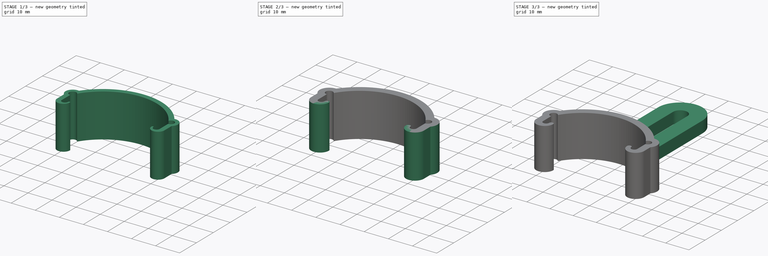
[diagram: build sequence overview — one tinted view per stage of 3, left to right]
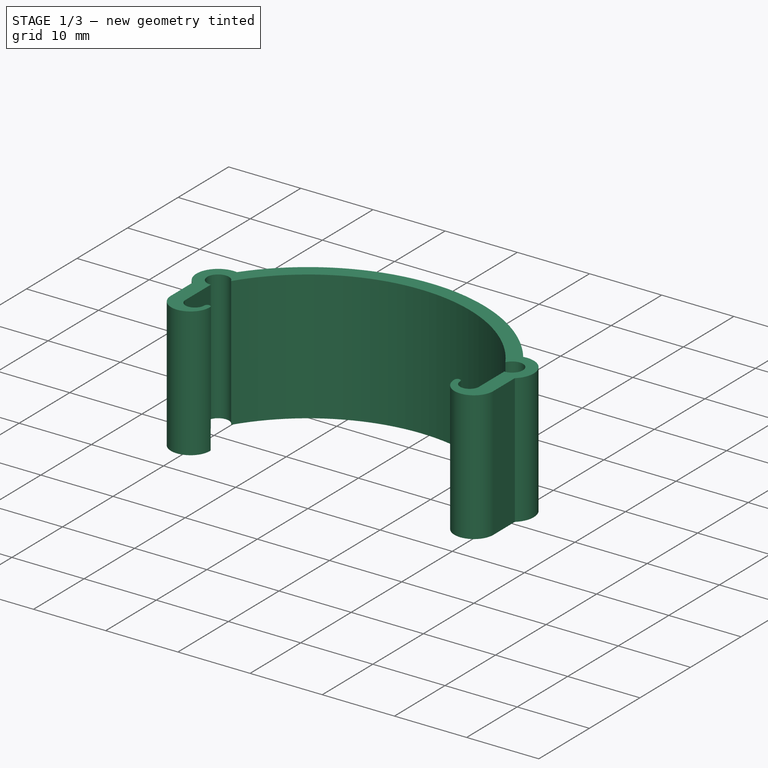
[diagram: stage 1 of 3 — iso view after this stage's code; geometry added in this stage tinted green]
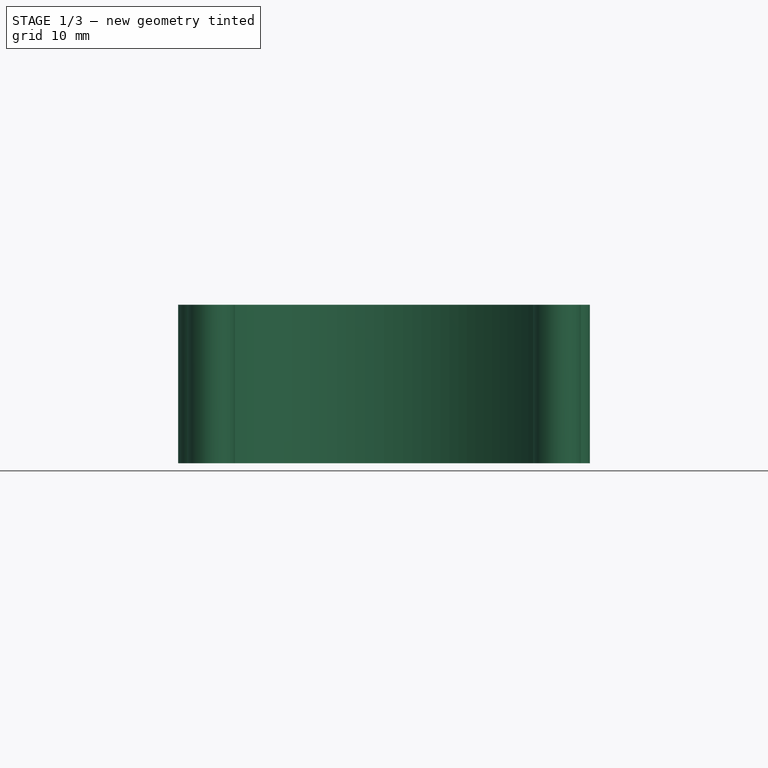
[diagram: stage 1 of 3 — front view after this stage's code; geometry added in this stage tinted green]
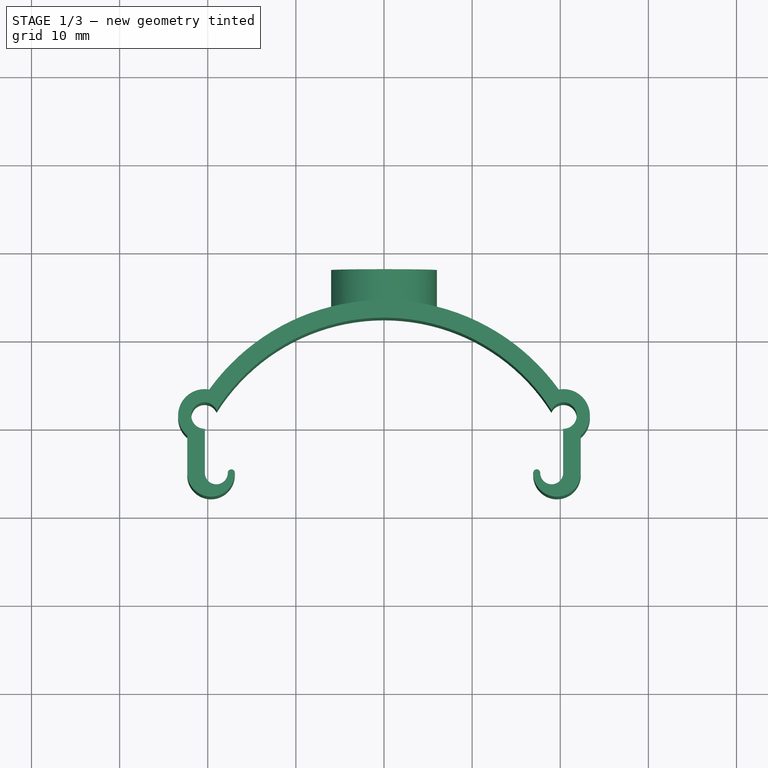
[diagram: stage 1 of 3 — top view after this stage's code; geometry added in this stage tinted green]
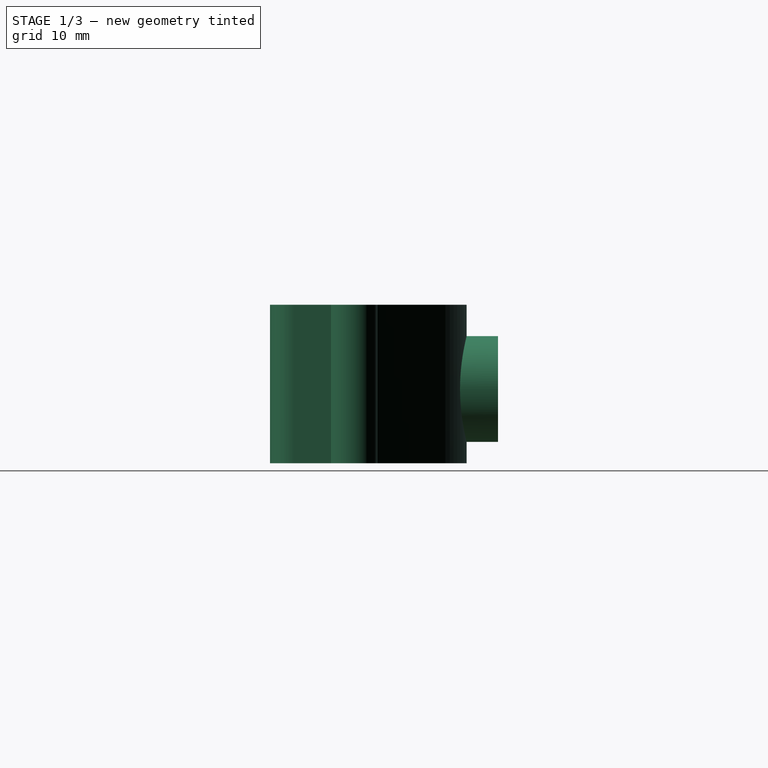
[diagram: stage 1 of 3 — right view after this stage's code; geometry added in this stage tinted green]
FCSTD DOCUMENT  (FreeCAD 1.0R39285 (Git))
Label: clip_garde_boue
License: All rights reserved
LicenseURL: https://en.wikipedia.org/wiki/All_rights_reserved
objects: Sketcher::SketchObject×4, PartDesign::Pad×4, PartDesign::Mirrored×3, PartDesign::Body×2, PartDesign::Fillet×1
note: 31 computed .brp shape members not serialized (recipe doc carries the construction recipe); baked Part::Feature solids carry a one-line shape summary decoded from their .brp

FEATURE [PartDesign::Body] Body  label="top"
  AllowCompound = false
  Group = -> [Sketch,Pad,Mirrored,Sketch001,Pad001,Mirrored001,Fillet]
  Origin = -> Origin
  Tip = -> Fillet
FEATURE [Sketcher::SketchObject] Sketch002
  ArcFitTolerance = 0
  AttachmentSupport = -> [XY_Plane001]
  FullyConstrained = true
  MakeInternals = false
  MapMode = 5
  sketch-geometry (11):
    g0: ArcOfCircle CenterX=0 CenterY=0 CenterZ=0 NormalX=0 NormalY=0 NormalZ=1 AngleXU=0 Radius=22.4405 StartAngle=0.561074 EndAngle=1.5708
    g1: ArcOfCircle CenterX=20.3672 CenterY=11.3233 CenterZ=0 NormalX=0 NormalY=0 NormalZ=1 AngleXU=0 Radius=1.5 StartAngle=4.68778 EndAngle=9.00074
    g2: LineSegment StartX=20.3302 StartY=9.82377 StartZ=0 EndX=20.3302 EndY=4.82377 EndZ=0
    g3: ArcOfCircle CenterX=19.0302 CenterY=4.82377 CenterZ=0 NormalX=0 NormalY=0 NormalZ=1 AngleXU=0 Radius=1.3 StartAngle=3.14159 EndAngle=6.28319
    g4: LineSegment [constr] StartX=20.3302 StartY=9.82377 StartZ=0 EndX=19 EndY=11.9405 EndZ=0
    g5: ArcOfCircle CenterX=0 CenterY=0 CenterZ=0 NormalX=0 NormalY=0 NormalZ=1 AngleXU=0 Radius=24.4405 StartAngle=0.623796 EndAngle=1.5708
    g6: ArcOfCircle CenterX=17.3302 CenterY=4.82377 CenterZ=0 NormalX=0 NormalY=0 NormalZ=1 AngleXU=0 Radius=0.4 StartAngle=-9e-16 EndAngle=3.14159
    g7: ArcOfCircle CenterX=20.3672 CenterY=11.3233 CenterZ=0 NormalX=0 NormalY=0 NormalZ=1 AngleXU=0 Radius=3 StartAngle=5.42573 EndAngle=8.03146
    g8: LineSegment StartX=22.3302 StartY=9.05477 StartZ=0 EndX=22.3302 EndY=4.82377 EndZ=0
    g9: ArcOfCircle CenterX=19.6302 CenterY=4.82377 CenterZ=0 NormalX=0 NormalY=0 NormalZ=1 AngleXU=0 Radius=2.7 StartAngle=3.14159 EndAngle=6.28319
    g10: LineSegment StartX=1.4e-15 StartY=22.4405 StartZ=0 EndX=0 EndY=24.4405 EndZ=0
  constraints (34):
    c: Coincident(g0,g-1)
    c: PointOnObject(g0,g-2)
    c: Coincident(g1,g0)
    c: Coincident(g2,g1)
    c: Vertical(g2)
    c: Coincident(g3,g2)
    c: Diameter(g1) = 3
    c: Diameter(g3) = 2.6
    c: Distance(g2) = 5
    c: Horizontal(g3,g3)
    c: Horizontal(g3,g2)
    c: DistanceY(g0,g0) = 10.5
    c: DistanceX(g0,g0) = 19
    c: Coincident(g4,g1)
    c: Tangent(g4,g0) = -1.5708
    c: Distance(g4) = 2.5
    c: Coincident(g5,g0)
    c: PointOnObject(g5,g-2)
    c: Coincident(g6,g3)
    c: Coincident(g7,g1)
    c: Coincident(g7,g5)
    c: Coincident(g8,g7)
    c: Vertical(g8)
    c: Coincident(g9,g6)
    c: Horizontal(g9,g3)
    c: Horizontal(g3,g6)
    c: Horizontal(g6,g6)
    c: Diameter(g6) = 0.8
    c: DistanceX(g2,g8) = 2
    c: DistanceY(g0,g5) = 2
    c: Diameter(g7) = 6
    c: Tangent(g9,g8) = 1.5708
    c: Coincident(g10,g0)
    c: Coincident(g10,g5)
FEATURE [PartDesign::Pad] Pad002
  Direction = (0,0,1)
  Length = 18
  Length2 = 10
  Profile = -> Sketch002
  ReferenceAxis = -> Sketch002 [N_Axis]
  Suppressed = false
  Type = 0
FEATURE [PartDesign::Mirrored] Mirrored002
  BaseFeature = -> Pad002
  MirrorPlane = -> Sketch002 [V_Axis]
  Originals = -> [Pad002]
  Suppressed = false
  TransformMode = 0
FEATURE [Sketcher::SketchObject] Sketch003
  ArcFitTolerance = 1e-06
  AttachmentSupport = -> [XZ_Plane001]
  ExternalGeometry = -> [Mirrored002]
  FullyConstrained = false
  MakeInternals = false
  MapMode = 5
  Placement = pos=(0,0,0) rot=(1,0,0;1.5708rad)
  sketch-geometry (2):
    g0: Circle CenterX=0 CenterY=8.43639 CenterZ=0 NormalX=0 NormalY=0 NormalZ=1 AngleXU=0 Radius=6
    g1: Circle CenterX=0 CenterY=8.43639 CenterZ=0 NormalX=0 NormalY=0 NormalZ=1 AngleXU=0 Radius=2
  constraints (4):
    c: Diameter(g0) = 12
    c: PointOnObject(g0,g-2)
    c: Diameter(g1) = 4
    c: Coincident(g1,g0)
FEATURE [PartDesign::Pad] Pad003
  BaseFeature = -> Mirrored002
  Direction = (0,-1,2e-16)
  Length = 28
  Length2 = -22.5
  Profile = -> Sketch003
  ReferenceAxis = -> Sketch003 [N_Axis]
  Refine = true
  Reversed = true
  Suppressed = false
  Type = 4
FEATURE [PartDesign::Body] Body001  label="side"
  AllowCompound = false
  Group = -> [Sketch002,Pad002,Mirrored002,Sketch003,Pad003]
  Origin = -> Origin001
  Tip = -> Pad003
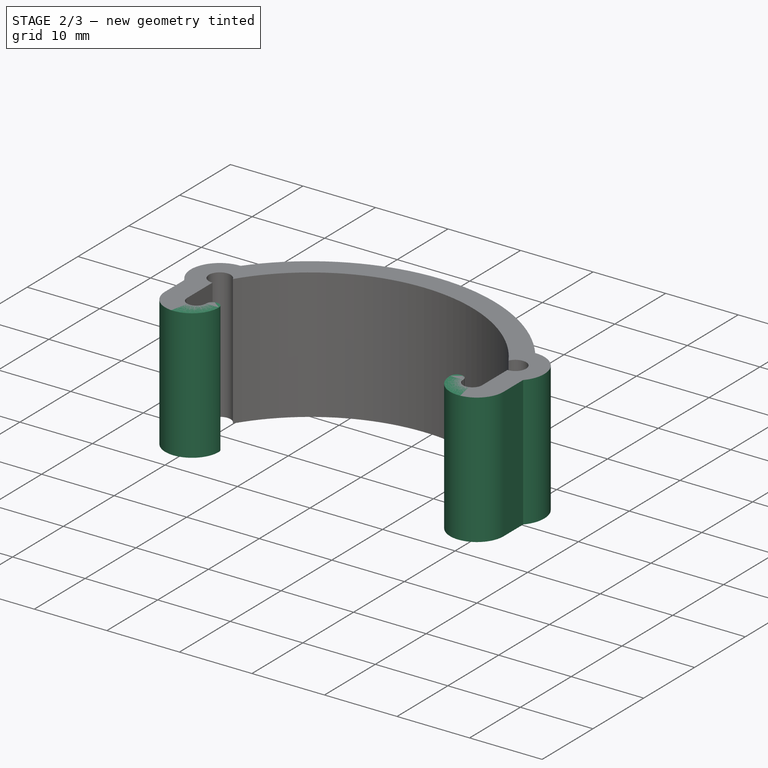
[diagram: stage 2 of 3 — iso view after this stage's code; geometry added in this stage tinted green]
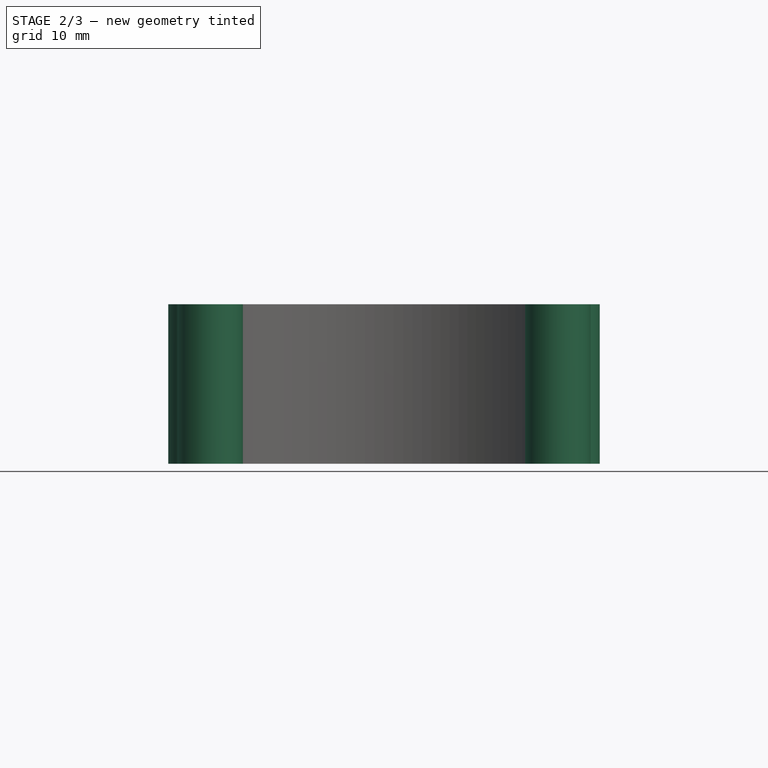
[diagram: stage 2 of 3 — front view after this stage's code; geometry added in this stage tinted green]
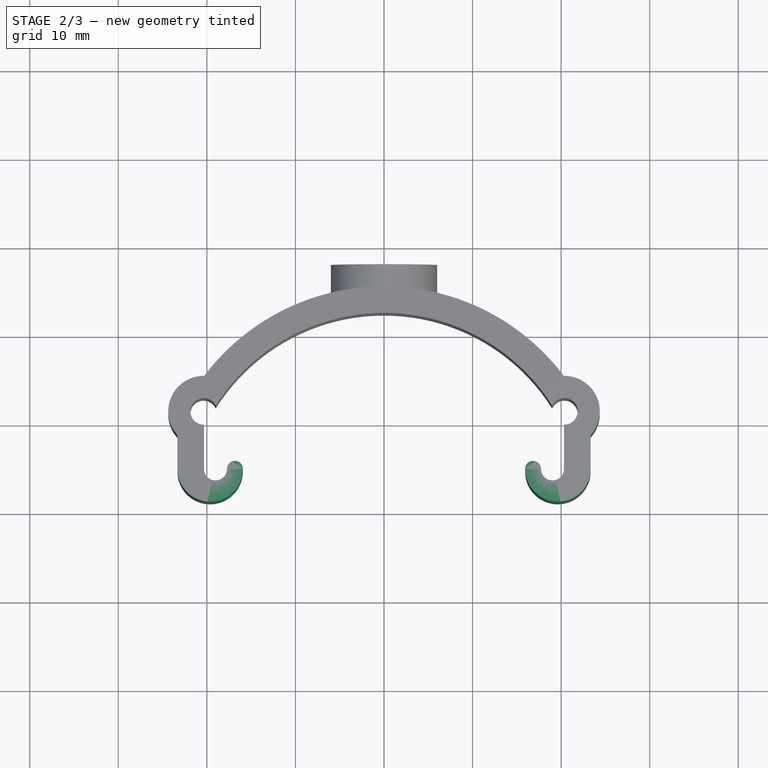
[diagram: stage 2 of 3 — top view after this stage's code; geometry added in this stage tinted green]
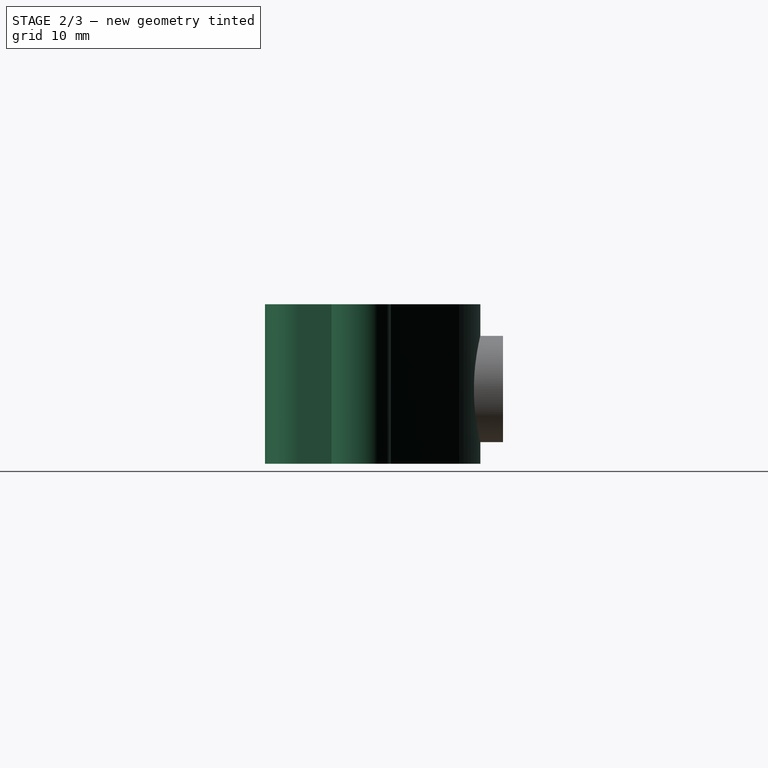
[diagram: stage 2 of 3 — right view after this stage's code; geometry added in this stage tinted green]
FEATURE [Sketcher::SketchObject] Sketch
  ArcFitTolerance = 0
  AttachmentSupport = -> [XY_Plane]
  FullyConstrained = true
  MakeInternals = false
  MapMode = 5
  sketch-geometry (11):
    g0: ArcOfCircle CenterX=0 CenterY=0 CenterZ=0 NormalX=0 NormalY=0 NormalZ=1 AngleXU=0 Radius=22.4405 StartAngle=0.561074 EndAngle=1.5708
    g1: ArcOfCircle CenterX=20.3672 CenterY=11.3233 CenterZ=0 NormalX=0 NormalY=0 NormalZ=1 AngleXU=0 Radius=1.5 StartAngle=4.68778 EndAngle=9.00074
    g2: LineSegment StartX=20.3302 StartY=9.82377 StartZ=0 EndX=20.3302 EndY=4.82377 EndZ=0
    g3: ArcOfCircle CenterX=19.0302 CenterY=4.82377 CenterZ=0 NormalX=0 NormalY=0 NormalZ=1 AngleXU=0 Radius=1.3 StartAngle=3.14159 EndAngle=6.28319
    g4: LineSegment [constr] StartX=20.3302 StartY=9.82377 StartZ=0 EndX=19 EndY=11.9405 EndZ=0
    g5: ArcOfCircle CenterX=0 CenterY=0 CenterZ=0 NormalX=0 NormalY=0 NormalZ=1 AngleXU=0 Radius=25.4405 StartAngle=0.646383 EndAngle=1.5708
    g6: ArcOfCircle CenterX=16.8302 CenterY=4.82377 CenterZ=0 NormalX=0 NormalY=0 NormalZ=1 AngleXU=0 Radius=0.9 StartAngle=0 EndAngle=3.14159
    g7: ArcOfCircle CenterX=20.3672 CenterY=11.3233 CenterZ=0 NormalX=0 NormalY=0 NormalZ=1 AngleXU=0 Radius=4 StartAngle=5.54661 EndAngle=7.86869
    g8: LineSegment StartX=23.3302 StartY=8.63628 StartZ=0 EndX=23.3302 EndY=4.82377 EndZ=0
    g9: ArcOfCircle CenterX=19.6302 CenterY=4.82377 CenterZ=0 NormalX=0 NormalY=0 NormalZ=1 AngleXU=0 Radius=3.7 StartAngle=3.14159 EndAngle=6.28319
    g10: LineSegment StartX=0 StartY=22.4405 StartZ=0 EndX=0 EndY=25.4405 EndZ=0
  constraints (34):
    c: Coincident(g0,g-1)
    c: PointOnObject(g0,g-2)
    c: Coincident(g1,g0)
    c: Coincident(g2,g1)
    c: Vertical(g2)
    c: Coincident(g3,g2)
    c: Diameter(g1) = 3
    c: Diameter(g3) = 2.6
    c: Distance(g2) = 5
    c: Horizontal(g3,g3)
    c: Horizontal(g3,g2)
    c: DistanceY(g0,g0) = 10.5
    c: DistanceX(g0,g0) = 19
    c: Coincident(g4,g1)
    c: Tangent(g4,g0) = -1.5708
    c: Distance(g4) = 2.5
    c: Coincident(g5,g0)
    c: PointOnObject(g5,g-2)
    c: Coincident(g6,g3)
    c: Coincident(g7,g1)
    c: Coincident(g7,g5)
    c: Coincident(g8,g7)
    c: Vertical(g8)
    c: Coincident(g9,g6)
    c: Horizontal(g9,g3)
    c: Horizontal(g3,g6)
    c: Horizontal(g6,g6)
    c: Diameter(g6) = 1.8
    c: DistanceX(g2,g8) = 3
    c: DistanceY(g0,g5) = 3
    c: Diameter(g7) = 8
    c: Tangent(g9,g8) = 1.5708
    c: Coincident(g10,g0)
    c: Coincident(g10,g5)
FEATURE [PartDesign::Pad] Pad
  Direction = (0,0,1)
  Length = 18
  Length2 = 10
  Profile = -> Sketch
  ReferenceAxis = -> Sketch [N_Axis]
  Suppressed = false
  Type = 0
FEATURE [PartDesign::Mirrored] Mirrored
  BaseFeature = -> Pad
  MirrorPlane = -> Sketch [V_Axis]
  Originals = -> [Pad]
  Suppressed = false
  TransformMode = 0
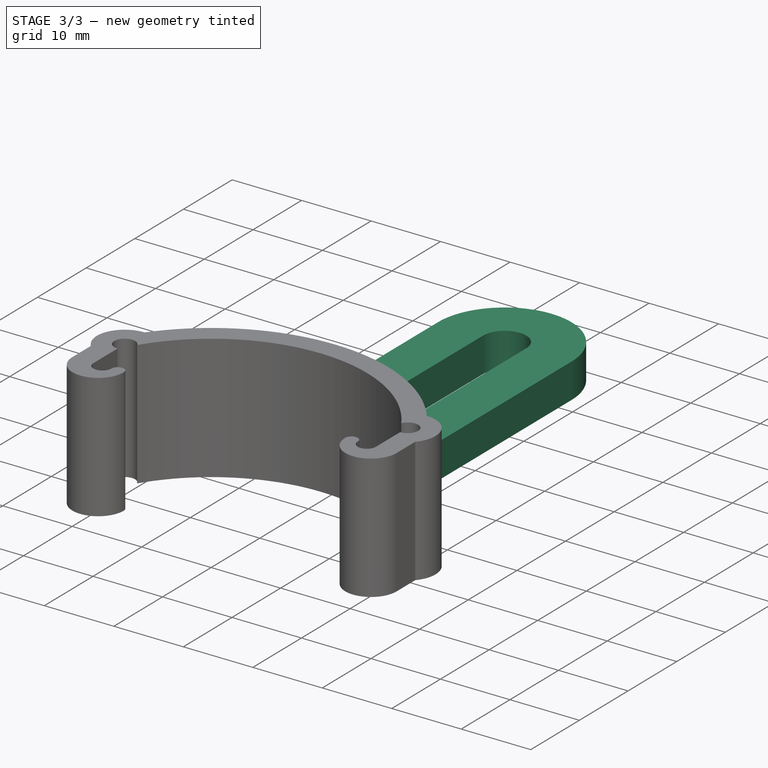
[diagram: stage 3 of 3 — iso view after this stage's code; geometry added in this stage tinted green]
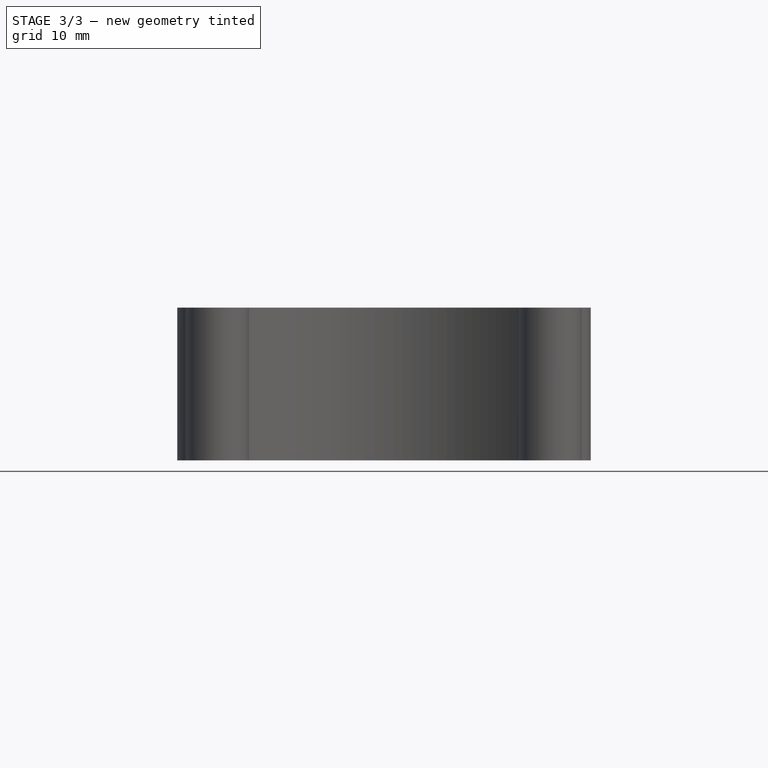
[diagram: stage 3 of 3 — front view after this stage's code; geometry added in this stage tinted green]
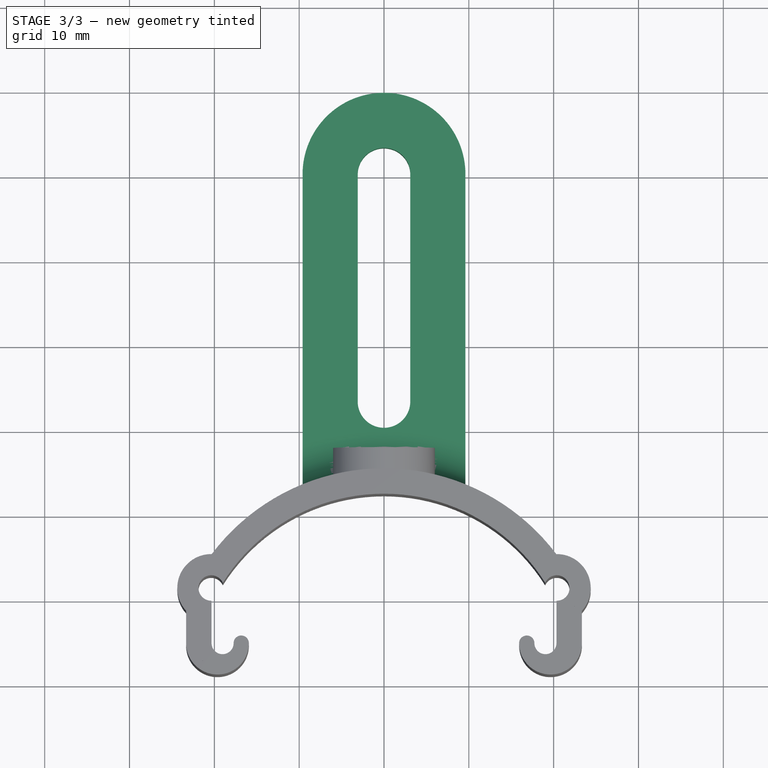
[diagram: stage 3 of 3 — top view after this stage's code; geometry added in this stage tinted green]
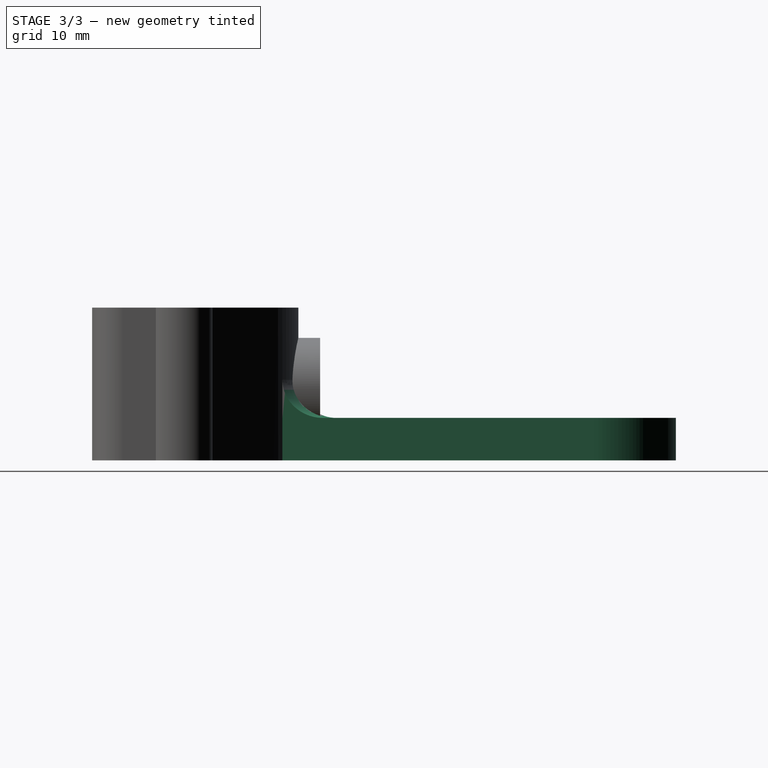
[diagram: stage 3 of 3 — right view after this stage's code; geometry added in this stage tinted green]
FEATURE [Sketcher::SketchObject] Sketch001
  ArcFitTolerance = 0
  AttachmentSupport = -> [Mirrored]
  ExternalGeometry = -> [Mirrored]
  FullyConstrained = true
  MakeInternals = false
  MapMode = 5
  Placement = pos=(0,0,0) rot=(1,0,0;3.14159rad)
  sketch-geometry (8):
    g0: LineSegment StartX=-9.6 StartY=-23.5597 StartZ=0 EndX=-9.6 EndY=-60.3405 EndZ=0
    g1: ArcOfCircle CenterX=0 CenterY=-60.3405 CenterZ=0 NormalX=0 NormalY=0 NormalZ=1 AngleXU=0 Radius=9.6 StartAngle=3.14159 EndAngle=4.71239
    g2: ArcOfCircle CenterX=0 CenterY=-60.3405 CenterZ=0 NormalX=0 NormalY=0 NormalZ=1 AngleXU=0 Radius=3.1 StartAngle=3.14159 EndAngle=4.71239
    g3: ArcOfCircle CenterX=0 CenterY=-33.5405 CenterZ=0 NormalX=0 NormalY=0 NormalZ=1 AngleXU=0 Radius=3.1 StartAngle=1.5708 EndAngle=3.14159
    g4: LineSegment StartX=-3.1 StartY=-33.5405 StartZ=0 EndX=-3.1 EndY=-60.3405 EndZ=0
    g5: LineSegment StartX=-1.8e-15 StartY=-69.9405 StartZ=0 EndX=-6e-16 EndY=-63.4405 EndZ=0
    g6: LineSegment StartX=2e-16 StartY=-30.4405 StartZ=0 EndX=-4.7e-15 EndY=-25.4405 EndZ=0
    g7: ArcOfCircle CenterX=0 CenterY=0 CenterZ=0 NormalX=0 NormalY=0 NormalZ=1 AngleXU=0 Radius=25.4405 StartAngle=4.32545 EndAngle=4.71239
  constraints (22):
    c: Vertical(g0)
    c: PointOnObject(g1,g-2)
    c: PointOnObject(g1,g-2)
    c: Coincident(g2,g1)
    c: PointOnObject(g2,g-2)
    c: PointOnObject(g3,g-2)
    c: PointOnObject(g3,g-2)
    c: Vertical(g4)
    c: DistanceX(g0,g3) = 6.5
    c: Tangent(g4,g3) = -1.5708
    c: DistanceX(g2,g1) = 3.1
    c: Tangent(g4,g2) = -1.5708
    c: Tangent(g1,g0) = -1.5708
    c: DistanceY(g2,g3) = 33
    c: DistanceY(g3,g-3) = 5
    c: Coincident(g5,g1)
    c: Coincident(g5,g2)
    c: Coincident(g6,g3)
    c: Coincident(g6,g-3)
    c: Coincident(g7,g-3)
    c: Coincident(g7,g0)
    c: Coincident(g7,g6)
FEATURE [PartDesign::Pad] Pad001
  BaseFeature = -> Mirrored
  Direction = (0,0,-1)
  Length = 5
  Length2 = 10
  Profile = -> Sketch001
  ReferenceAxis = -> Sketch001 [N_Axis]
  Reversed = true
  Suppressed = false
  Type = 0
FEATURE [PartDesign::Mirrored] Mirrored001
  BaseFeature = -> Pad001
  MirrorPlane = -> Sketch001 [V_Axis]
  Originals = -> [Pad001]
  Suppressed = false
  TransformMode = 0
FEATURE [PartDesign::Fillet] Fillet
  Base = -> Mirrored001 [Edge66,Edge41]
  BaseFeature = -> Mirrored001
  Radius = 4.5
  SupportTransform = false
  Suppressed = false
  UseAllEdges = false
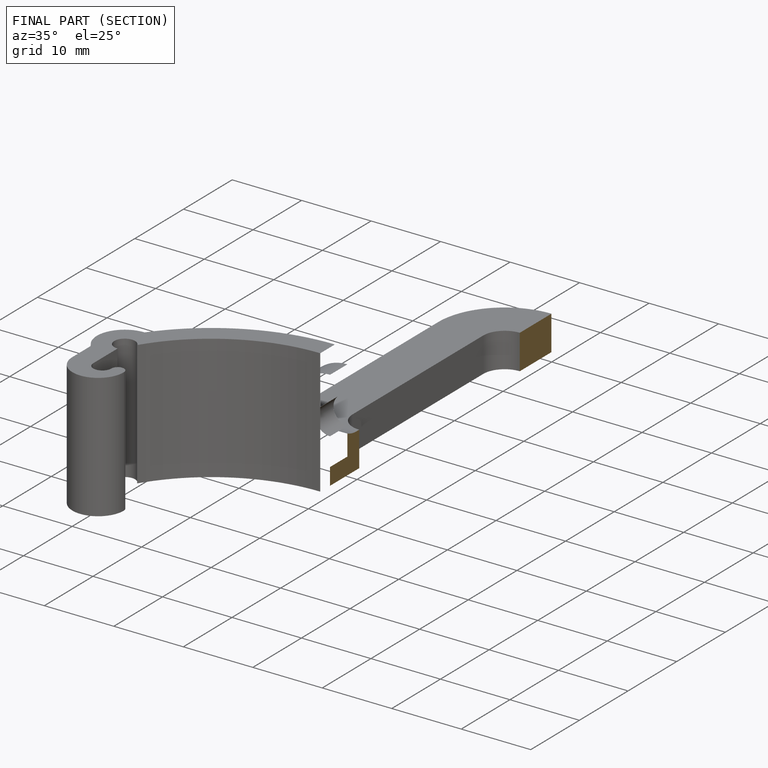
[diagram: finished part — half-section view (interior)]
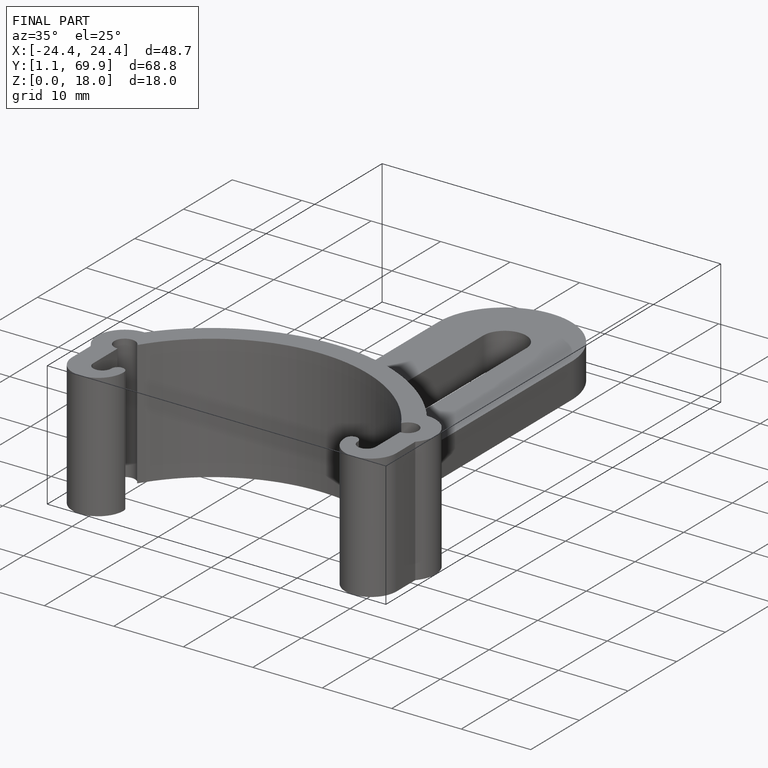
[diagram: finished part — iso view with bounding-box wireframe]
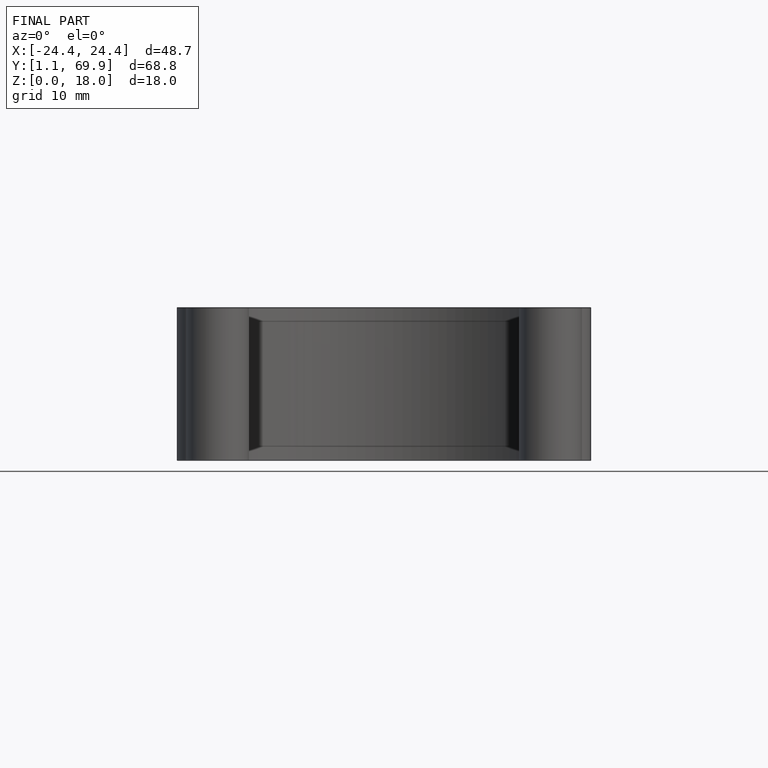
[diagram: finished part — front view with bounding-box wireframe]
